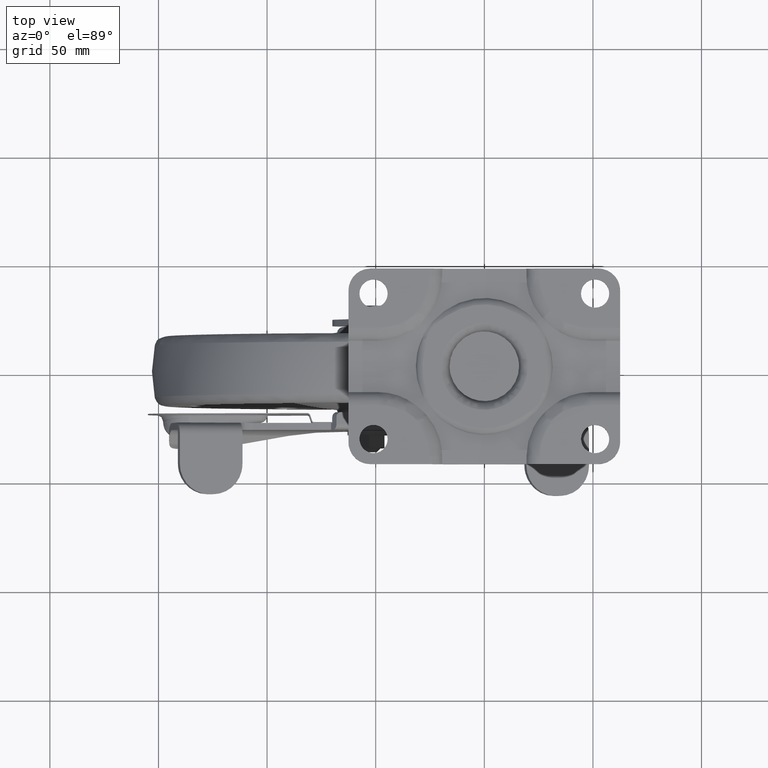
[diagram: clean part render]
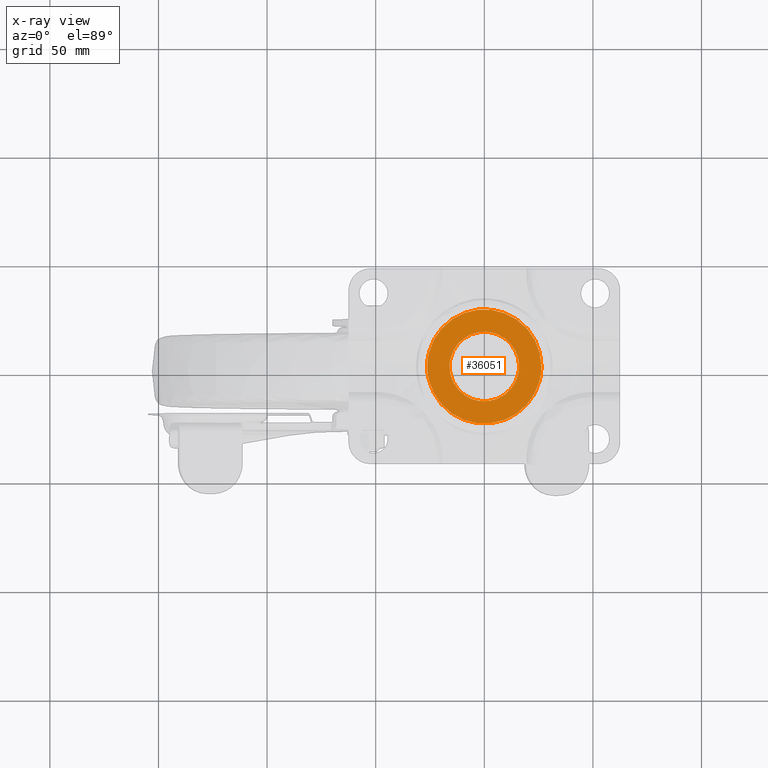
[diagram: x-ray — body ghosted, one internal face saturated and labeled with its STEP entity id]
A machine part, top view, then the same camera in x-ray: the body is ghosted and one INTERNAL B-rep face — a face not visible from any outside direction — is saturated and labeled: STEP entity #36051.
In plain terms, the highlighted face is a freeform B-spline surface patch.
Its self-contained STEP definition (entity closure, byte-faithful):
#32417=CARTESIAN_POINT('',(-25.452644216162749,6.535128291747949,-7.185034000528854));
#32418=VERTEX_POINT('',#32417);
#32432=CARTESIAN_POINT('',(26.278222910961748,-4.898443E-016,-7.185034000000099));
#32433=VERTEX_POINT('',#32432);
#32434=CARTESIAN_POINT('',(-25.452644216162749,6.535128291747949,-7.185034000528854));
#32435=CARTESIAN_POINT('',(-25.034765608102269,8.163570298789322,-7.185034000526724));
#32436=CARTESIAN_POINT('',(-24.087583075985670,10.779119339503360,-7.185034000520509));
#32437=CARTESIAN_POINT('',(-21.833254274678890,14.854212912488300,-7.185034000503022));
#32438=CARTESIAN_POINT('',(-19.223695180799670,18.116327465489690,-7.185034000480899));
#32439=CARTESIAN_POINT('',(-15.724433568732460,21.192023080785049,-7.185034000449647));
#32440=CARTESIAN_POINT('',(-12.365588994826640,23.312050380142100,-7.185034000418491));
#32441=CARTESIAN_POINT('',(-8.539168364024212,24.952245783402311,-7.185034000382061));
#32442=CARTESIAN_POINT('',(-4.510778848483468,26.016173494706759,-7.185034000342938));
#32443=CARTESIAN_POINT('',(-0.554612399950465,26.368620294504009,-7.185034000303558));
#32444=CARTESIAN_POINT('',(3.301925370935032,26.144854942504089,-7.185034000264487));
#32445=CARTESIAN_POINT('',(7.101292638233320,25.423197558657819,-7.185034000225341));
#32446=CARTESIAN_POINT('',(10.643956823141441,24.124061257711130,-7.185034000188093));
#32447=CARTESIAN_POINT('',(14.133976638934209,22.250892983688789,-7.185034000150465));
#32448=CARTESIAN_POINT('',(17.185789604571820,20.034850176428922,-7.185034000117231));
#32449=CARTESIAN_POINT('',(19.903983211286270,17.281585845870492,-7.185034000086266));
#32450=CARTESIAN_POINT('',(22.221944317393589,14.191235533315030,-7.185034000058884));
#32451=CARTESIAN_POINT('',(24.085885010101030,10.798850145690871,-7.185034000035949));
#32452=CARTESIAN_POINT('',(25.799973780612181,5.933327636711298,-7.185034000012247));
#32453=CARTESIAN_POINT('',(26.278962661459001,2.274642056511218,-7.185034000003467));
#32454=CARTESIAN_POINT('',(26.278222910961748,-4.898443E-016,-7.185034000000099));
#32455=B_SPLINE_CURVE_WITH_KNOTS('',3,(#32434,#32435,#32436,#32437,#32438,#32439,#32440,#32441,#32442,#32443,#32444,#32445,#32446,#32447,#32448,#32449,#32450,#32451,#32452,#32453,#32454),.UNSPECIFIED.,.F.,.U.,(4,1,1,1,1,1,1,1,1,1,1,1,1,1,1,1,1,1,4),(0.000000160404767,5.043577008748542,8.307164633820150,13.944214192243360,17.504457736621308,22.251475033011911,25.811735436797850,29.965259778956419,34.712094172099221,37.678885910052323,41.535879310921040,46.282817887722018,48.953014537411413,53.403355673414993,57.556976501807213,60.523857173185689,64.974092047403900,69.127734403280911,75.951437646574860),.UNSPECIFIED.);
#32456=EDGE_CURVE('',#32418,#32433,#32455,.T.);
#32458=CARTESIAN_POINT('',(25.452644216162749,-6.535128291747951,-7.185034000528853));
#32459=VERTEX_POINT('',#32458);
#32460=CARTESIAN_POINT('',(26.278222910961748,-4.898443E-016,-7.185034000000099));
#32461=CARTESIAN_POINT('',(26.278222911201077,-3.319711567598644,-7.185034000264476));
#32462=CARTESIAN_POINT('',(25.452644216162749,-6.535128291747952,-7.185034000528853));
#32470=(BOUNDED_CURVE()B_SPLINE_CURVE(2,(#32460,#32461,#32462),.UNSPECIFIED.,.F.,.U.)B_SPLINE_CURVE_WITH_KNOTS((3,3),(0.500000000000000,0.542443238249583),.UNSPECIFIED.)CURVE()GEOMETRIC_REPRESENTATION_ITEM()RATIONAL_B_SPLINE_CURVE((1.0,0.950274653328853,0.917433344544159))REPRESENTATION_ITEM(''));
#32471=EDGE_CURVE('',#32433,#32459,#32470,.T.);
#32524=CARTESIAN_POINT('',(-26.278222910961730,0.0,-7.185034000000115));
#32525=VERTEX_POINT('',#32524);
#32526=CARTESIAN_POINT('',(25.452644216162749,-6.535128291747951,-7.185034000528853));
#32527=CARTESIAN_POINT('',(24.912167995219200,-8.642663055910630,-7.185034000526104));
#32528=CARTESIAN_POINT('',(23.595375287676791,-11.979896537424530,-7.185034000517092));
#32529=CARTESIAN_POINT('',(20.828021633808099,-16.215417171800091,-7.185034000494627));
#32530=CARTESIAN_POINT('',(18.076782045408180,-19.213686221985579,-7.185034000470774));
#32531=CARTESIAN_POINT('',(15.215581208614410,-21.508093862086611,-7.185034000444884));
#32532=CARTESIAN_POINT('',(11.672821347049460,-23.689055965224231,-7.185034000412011));
#32533=CARTESIAN_POINT('',(7.425324541821133,-25.397426776857309,-7.185034000371587));
#32534=CARTESIAN_POINT('',(2.930634255078971,-26.211019485531128,-7.185034000327234));
#32535=CARTESIAN_POINT('',(-1.227317505496719,-26.345814306411370,-7.185034000285634));
#32536=CARTESIAN_POINT('',(-5.666563937689908,-25.836161634169930,-7.185034000240276));
#32537=CARTESIAN_POINT('',(-10.399747377720979,-24.309737160299530,-7.185034000190854));
#32538=CARTESIAN_POINT('',(-15.093240914941971,-21.721975269988238,-7.185034000140118));
#32539=CARTESIAN_POINT('',(-18.894765701910291,-18.510744298204219,-7.185034000098256));
#32540=CARTESIAN_POINT('',(-21.612326536071979,-15.092231049666021,-7.185034000066127));
#32541=CARTESIAN_POINT('',(-23.534974979544302,-11.857613848987210,-7.185034000042818));
#32542=CARTESIAN_POINT('',(-24.946884007857651,-8.577229094977806,-7.185034000024348));
#32543=CARTESIAN_POINT('',(-26.018416676939800,-4.450158057338498,-7.185034000008530));
#32544=CARTESIAN_POINT('',(-26.278358215330350,-1.582296419312950,-7.185034000001929));
#32545=CARTESIAN_POINT('',(-26.278222910961730,0.0,-7.185034000000115));
#32546=B_SPLINE_CURVE_WITH_KNOTS('',3,(#32526,#32527,#32528,#32529,#32530,#32531,#32532,#32533,#32534,#32535,#32536,#32537,#32538,#32539,#32540,#32541,#32542,#32543,#32544,#32545),.UNSPECIFIED.,.F.,.U.,(4,1,1,1,1,1,1,1,1,1,1,1,1,1,1,1,1,4),(0.000000160401754,6.527024424546184,10.680649497265989,15.130965279379540,18.691225604730629,21.658107319321640,27.591806513583329,32.338755563426879,35.305521888219410,40.052370294999761,45.689461886627981,50.139793880884241,56.073527668744319,60.523857173186158,63.194052841133910,67.347680163810296,71.204536827106111,75.951437646574774),.UNSPECIFIED.);
#32547=EDGE_CURVE('',#32459,#32525,#32546,.T.);
#32549=CARTESIAN_POINT('',(-26.278222910961730,0.0,-7.185034000000115));
#32550=CARTESIAN_POINT('',(-26.278222911201070,3.319711567598643,-7.185034000264485));
#32551=CARTESIAN_POINT('',(-25.452644216162749,6.535128291747949,-7.185034000528854));
#32559=(BOUNDED_CURVE()B_SPLINE_CURVE(2,(#32549,#32550,#32551),.UNSPECIFIED.,.F.,.U.)B_SPLINE_CURVE_WITH_KNOTS((3,3),(0.0,0.042443238249583),.UNSPECIFIED.)CURVE()GEOMETRIC_REPRESENTATION_ITEM()RATIONAL_B_SPLINE_CURVE((1.0,0.950274653328853,0.917433344544159))REPRESENTATION_ITEM(''));
#32560=EDGE_CURVE('',#32525,#32418,#32559,.T.);
#35974=CARTESIAN_POINT('',(-28.903417277902211,-28.890999392197749,-7.185034000000099));
#35975=CARTESIAN_POINT('',(28.903418687575961,-28.890999392197749,-7.185034000000099));
#35976=CARTESIAN_POINT('',(-28.903417277902211,28.891000801621299,-7.185034000000099));
#35977=CARTESIAN_POINT('',(28.903418687575961,28.891000801621299,-7.185034000000099));
#35978=B_SPLINE_SURFACE_WITH_KNOTS('',1,1,((#35974,#35976),(#35975,#35977)),.UNSPECIFIED.,.F.,.F.,.U.,(2,2),(2,2),(0.0,57.806835965478172),(0.0,57.782000193819037),.UNSPECIFIED.);
#35979=ORIENTED_EDGE('',*,*,#32547,.F.);
#35980=ORIENTED_EDGE('',*,*,#32471,.F.);
#35981=ORIENTED_EDGE('',*,*,#32456,.F.);
#35982=ORIENTED_EDGE('',*,*,#32560,.F.);
#35983=EDGE_LOOP('',(#35979,#35980,#35981,#35982));
#35984=FACE_OUTER_BOUND('',#35983,.T.);
#35985=CARTESIAN_POINT('',(16.0,0.0,-7.185034000000150));
#35986=VERTEX_POINT('',#35985);
#35987=CARTESIAN_POINT('',(0.976776632904584,15.970156774728650,-7.185034000000151));
#35988=VERTEX_POINT('',#35987);
#35989=CARTESIAN_POINT('',(16.0,0.0,-7.185034000000150));
#35990=CARTESIAN_POINT('',(15.999999999999995,15.051297070163594,-7.185034000000151));
#35991=CARTESIAN_POINT('',(0.976776632904584,15.970156774728656,-7.185034000000150));
#35999=(BOUNDED_CURVE()B_SPLINE_CURVE(2,(#35989,#35990,#35991),.UNSPECIFIED.,.F.,.U.)B_SPLINE_CURVE_WITH_KNOTS((3,3),(0.0,0.239332962238221),.UNSPECIFIED.)CURVE()GEOMETRIC_REPRESENTATION_ITEM()RATIONAL_B_SPLINE_CURVE((1.0,0.719603993287556,0.976072041665170))REPRESENTATION_ITEM(''));
#36000=EDGE_CURVE('',#35986,#35988,#35999,.T.);
#36001=ORIENTED_EDGE('',*,*,#36000,.F.);
#36002=CARTESIAN_POINT('',(-0.976776632904584,-15.970156774728650,-7.185034000000151));
#36003=VERTEX_POINT('',#36002);
#36004=CARTESIAN_POINT('',(-0.976776632904587,-15.970156774728657,-7.185034000000151));
#36005=CARTESIAN_POINT('',(-0.488844212951347,-16.000000000000004,-7.185034000000151));
#36006=CARTESIAN_POINT('',(0.0,-16.0,-7.185034000000150));
#36007=CARTESIAN_POINT('',(15.999999999999998,-15.999999999999998,-7.185034000000151));
#36008=CARTESIAN_POINT('',(16.0,0.0,-7.185034000000150));
#36016=(BOUNDED_CURVE()B_SPLINE_CURVE(2,(#36004,#36005,#36006,#36007,#36008),.UNSPECIFIED.,.F.,.U.)B_SPLINE_CURVE_WITH_KNOTS((3,2,3),(0.739332962238221,0.750000000000000,1.0),.UNSPECIFIED.)CURVE()GEOMETRIC_REPRESENTATION_ITEM()RATIONAL_B_SPLINE_CURVE((0.976072041665170,0.987502787898991,1.0,0.707106781186548,1.0))REPRESENTATION_ITEM(''));
#36017=EDGE_CURVE('',#36003,#35986,#36016,.T.);
#36018=ORIENTED_EDGE('',*,*,#36017,.F.);
#36019=CARTESIAN_POINT('',(-16.0,0.0,-7.185034000000150));
#36020=VERTEX_POINT('',#36019);
#36021=CARTESIAN_POINT('',(-16.0,0.0,-7.185034000000150));
#36022=CARTESIAN_POINT('',(-16.000000000000007,-15.051297070163592,-7.185034000000150));
#36023=CARTESIAN_POINT('',(-0.976776632904587,-15.970156774728657,-7.185034000000151));
#36031=(BOUNDED_CURVE()B_SPLINE_CURVE(2,(#36021,#36022,#36023),.UNSPECIFIED.,.F.,.U.)B_SPLINE_CURVE_WITH_KNOTS((3,3),(0.500000000000000,0.739332962238221),.UNSPECIFIED.)CURVE()GEOMETRIC_REPRESENTATION_ITEM()RATIONAL_B_SPLINE_CURVE((1.0,0.719603993287557,0.976072041665170))REPRESENTATION_ITEM(''));
#36032=EDGE_CURVE('',#36020,#36003,#36031,.T.);
#36033=ORIENTED_EDGE('',*,*,#36032,.F.);
#36034=CARTESIAN_POINT('',(0.976776632904584,15.970156774728656,-7.185034000000150));
#36035=CARTESIAN_POINT('',(0.488844212951345,16.000000000000004,-7.185034000000150));
#36036=CARTESIAN_POINT('',(0.0,16.0,-7.185034000000150));
#36037=CARTESIAN_POINT('',(-15.999999999999998,15.999999999999998,-7.185034000000151));
#36038=CARTESIAN_POINT('',(-16.0,0.0,-7.185034000000150));
#36046=(BOUNDED_CURVE()B_SPLINE_CURVE(2,(#36034,#36035,#36036,#36037,#36038),.UNSPECIFIED.,.F.,.U.)B_SPLINE_CURVE_WITH_KNOTS((3,2,3),(0.239332962238221,0.250000000000000,0.500000000000000),.UNSPECIFIED.)CURVE()GEOMETRIC_REPRESENTATION_ITEM()RATIONAL_B_SPLINE_CURVE((0.976072041665170,0.987502787898991,1.0,0.707106781186548,1.0))REPRESENTATION_ITEM(''));
#36047=EDGE_CURVE('',#35988,#36020,#36046,.T.);
#36048=ORIENTED_EDGE('',*,*,#36047,.F.);
#36049=EDGE_LOOP('',(#36001,#36018,#36033,#36048));
#36050=FACE_BOUND('',#36049,.T.);
#36051=ADVANCED_FACE('',(#35984,#36050),#35978,.T.);